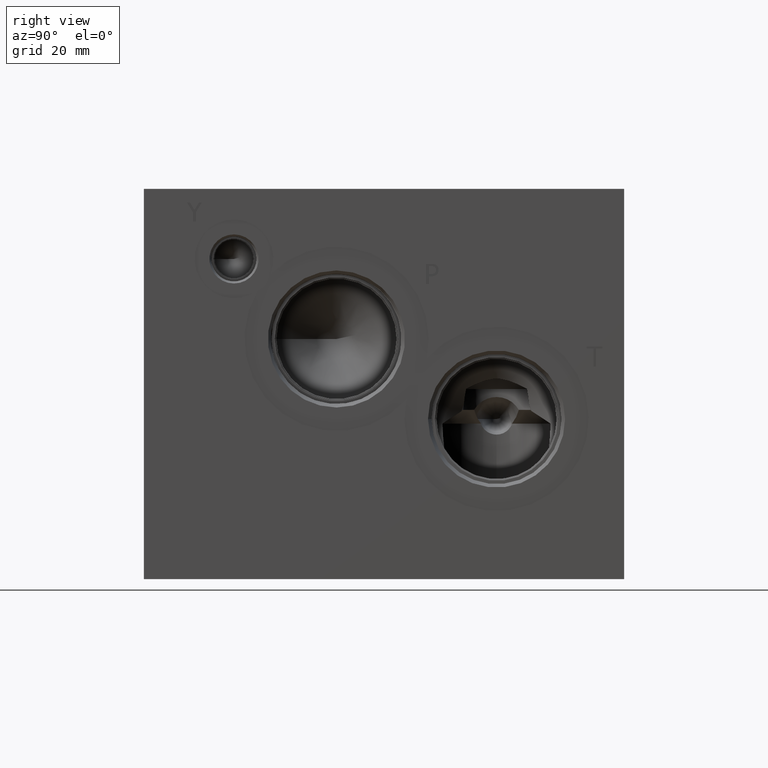
[diagram: clean part render]
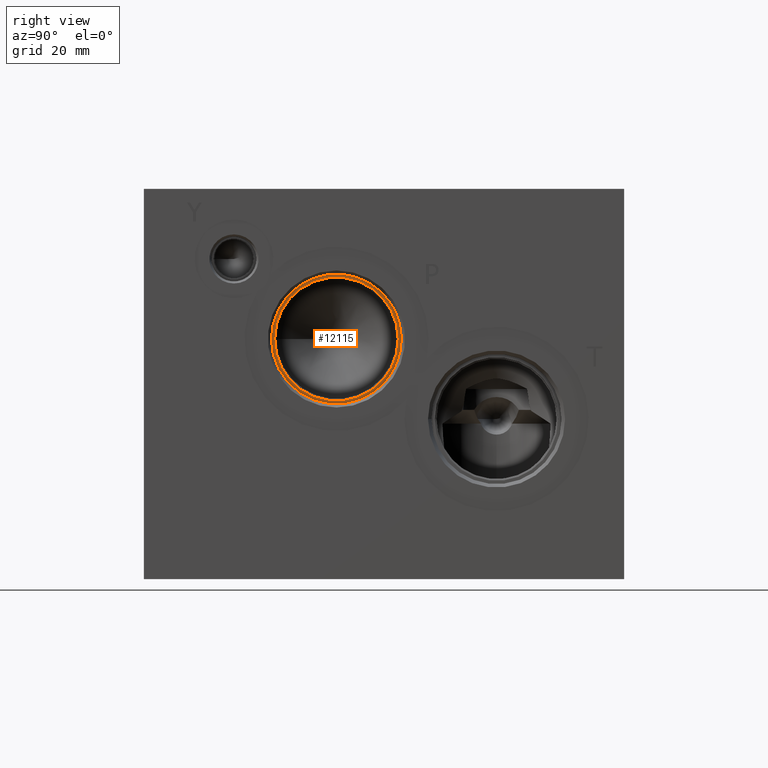
[diagram: same view with one face highlighted and labeled with its STEP entity id]
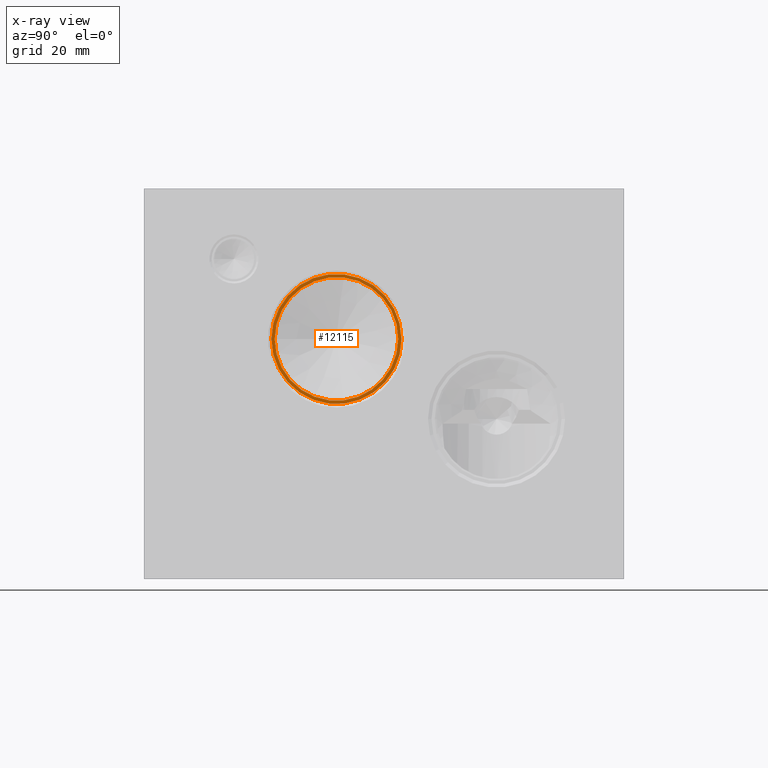
[diagram: x-ray of the same camera — body ghosted, the highlighted face saturated]
A machine part, right view. The second image highlights one B-rep face of the part: STEP entity #12115.
The next image is the same camera in x-ray: the body ghosted, the highlighted face saturated — about 0% of this face is hidden behind the body in this view.
In plain terms, the highlighted planar face has unit normal (1, 0, 0).
Its self-contained STEP definition (entity closure, byte-faithful):
#243=CIRCLE('',#12695,20.64);
#244=CIRCLE('',#12696,20.64);
#245=CIRCLE('',#12697,19.6088);
#481=FACE_BOUND('',#2073,.T.);
#831=PLANE('',#12694);
#1378=FACE_OUTER_BOUND('',#2072,.T.);
#2072=EDGE_LOOP('',(#10425,#10426));
#2073=EDGE_LOOP('',(#10427));
#5688=VERTEX_POINT('',#20707);
#5689=VERTEX_POINT('',#20708);
#5690=VERTEX_POINT('',#20711);
#7317=EDGE_CURVE('',#5688,#5689,#243,.T.);
#7318=EDGE_CURVE('',#5689,#5688,#244,.T.);
#7319=EDGE_CURVE('',#5690,#5690,#245,.T.);
#10425=ORIENTED_EDGE('',*,*,#7317,.T.);
#10426=ORIENTED_EDGE('',*,*,#7318,.T.);
#10427=ORIENTED_EDGE('',*,*,#7319,.F.);
#12115=ADVANCED_FACE('',(#1378,#481),#831,.T.);
#12694=AXIS2_PLACEMENT_3D('',#20706,#14892,#14893);
#12695=AXIS2_PLACEMENT_3D('',#20709,#14894,#14895);
#12696=AXIS2_PLACEMENT_3D('',#20710,#14896,#14897);
#12697=AXIS2_PLACEMENT_3D('',#20712,#14898,#14899);
#14892=DIRECTION('center_axis',(1.,0.,0.));
#14893=DIRECTION('ref_axis',(0.,1.,0.));
#14894=DIRECTION('center_axis',(1.,0.,0.));
#14895=DIRECTION('ref_axis',(0.,1.,0.));
#14896=DIRECTION('center_axis',(1.,0.,0.));
#14897=DIRECTION('ref_axis',(0.,1.,0.));
#14898=DIRECTION('center_axis',(1.,0.,0.));
#14899=DIRECTION('ref_axis',(0.,1.,0.));
#20706=CARTESIAN_POINT('Origin',(103.9876,61.1124,76.2));
#20707=CARTESIAN_POINT('',(103.9876,81.7524,76.2));
#20708=CARTESIAN_POINT('',(103.9876,40.4724,76.2));
#20709=CARTESIAN_POINT('Origin',(103.9876,61.1124,76.2));
#20710=CARTESIAN_POINT('Origin',(103.9876,61.1124,76.2));
#20711=CARTESIAN_POINT('',(103.9876,41.5036,76.2));
#20712=CARTESIAN_POINT('Origin',(103.9876,61.1124,76.2));